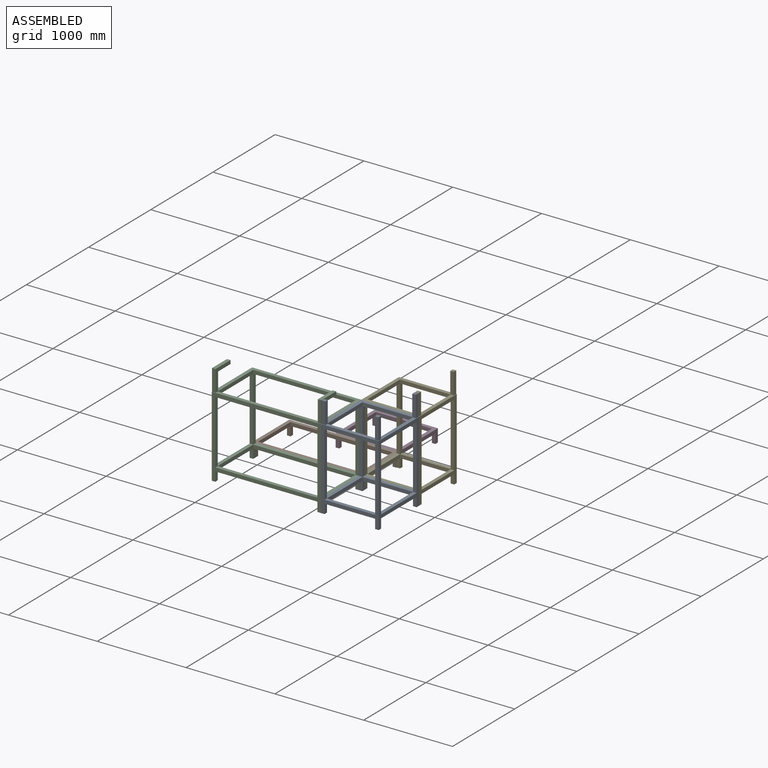
[diagram: assembled view]
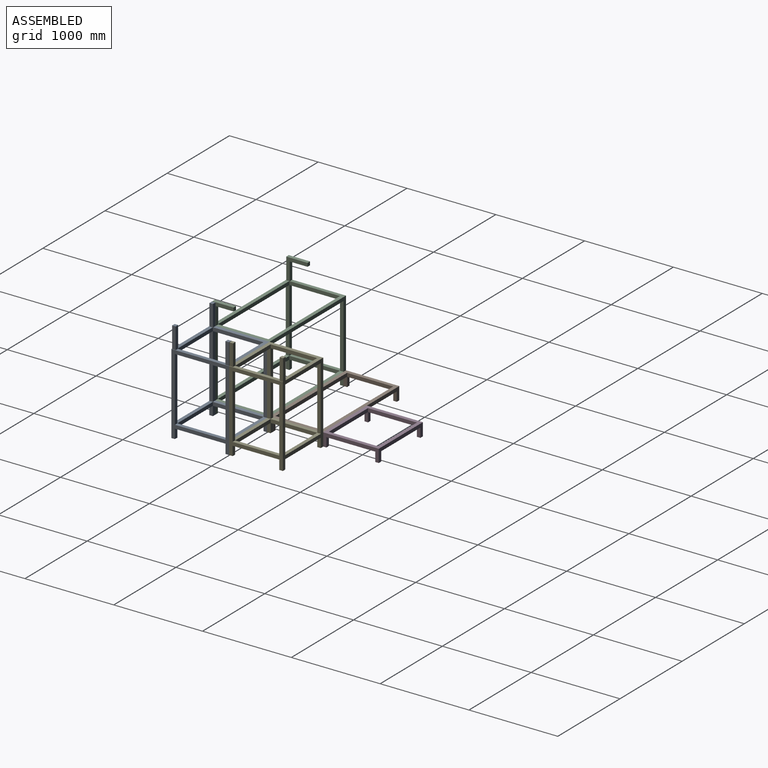
[diagram: assembled view, second angle]
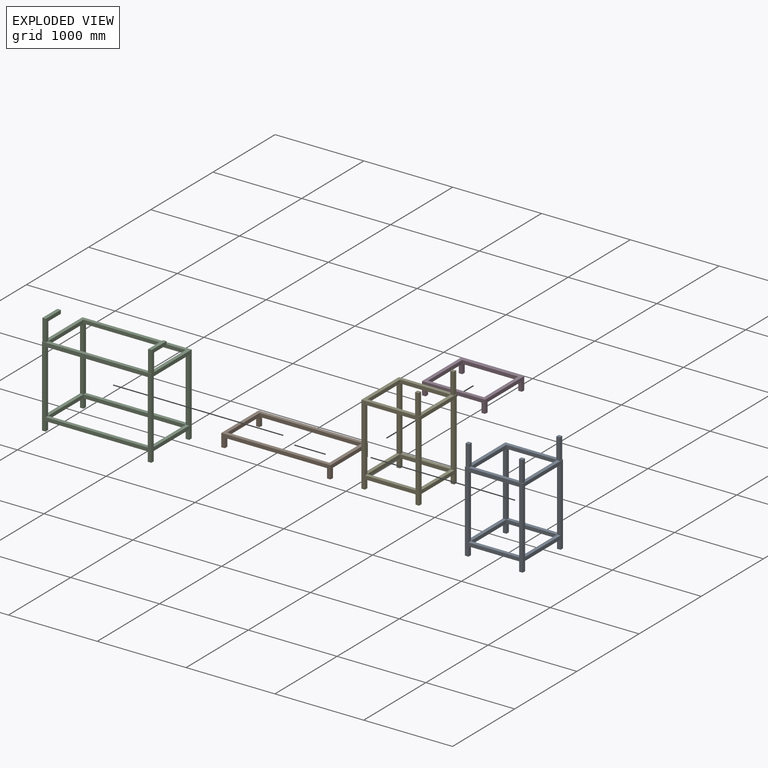
[diagram: exploded view]
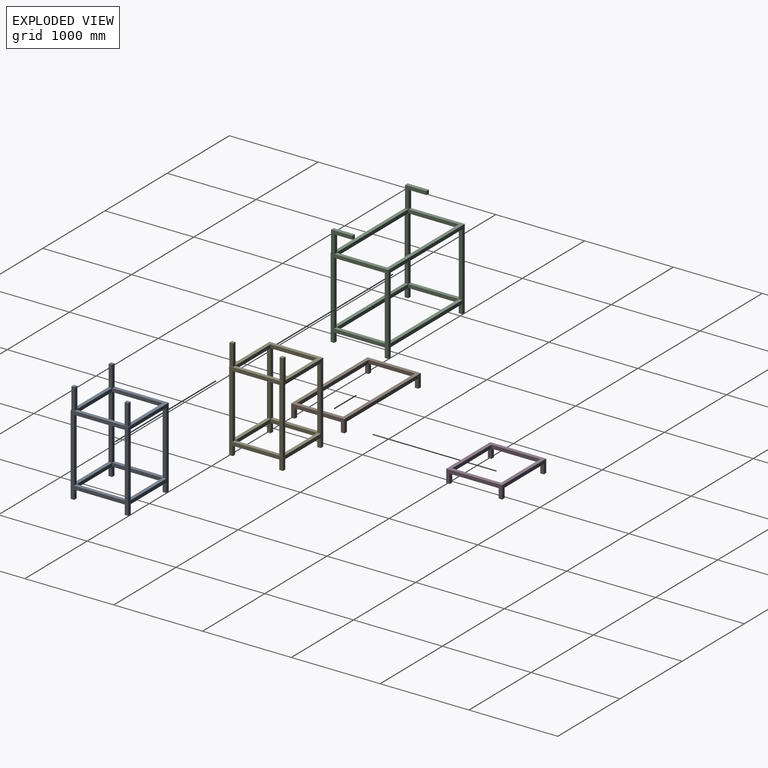
[diagram: exploded view, second angle]
ASSEMBLY  parts=5 mates=4
PART A: 63 faces, bbox 650x650x1145 mm
  f0: plane 650x650mm, normal (0,0,1), area 92875mm2, adj f1,f2,f4,f5,f13,f18,f19,f20
  f1: plane 905x650mm, normal (1,0,0), area 118000mm2, adj f0,f3,f8,f9,f13,f14,f23,f24
  f2: plane 570x40mm, normal (-1,0,0), area 22800mm2, adj f0,f3,f4,f5,f6,f7
  f3: plane 570x40mm, normal (0,0,-1), area 22800mm2, adj f1,f2,f8,f24
  f4: plane 570x40mm, normal (0,-1,0), area 22800mm2, adj f0,f2,f6,f35,f54
  f5: plane 570x40mm, normal (0,1,0), area 22800mm2, adj f0,f2,f7,f15,f17,f35
  f6: plane 5x5mm, normal (0,0,-1), area 25mm2, adj f2,f4,f31,f32
  f7: plane 5x5mm, normal (0,0,-1), area 25mm2, adj f2,f5,f55,f56
  f8: plane 720x40mm, normal (0,1,0), area 28800mm2, adj f1,f3,f10,f62
  f9: plane 105x40mm, normal (0,1,0), area 4200mm2, adj f1,f11,f14,f61
  f10: plane 720x40mm, normal (-1,0,0), area 28800mm2, adj f8,f13,f15,f51
  f11: plane 105x40mm, normal (-1,0,0), area 4200mm2, adj f9,f13,f14,f50
  f12: plane 570x40mm, normal (0,1,0), area 22800mm2, adj f42,f50,f51,f60
  f13: plane 905x650mm, normal (0,-1,0), area 118000mm2, adj f0,f1,f10,f11,f14,f15,f16,f36
  f14: plane 40x40mm, normal (0,0,-1), area 1600mm2, adj f1,f9,f11,f13
  f15: plane 570x40mm, normal (0,0,-1), area 22800mm2, adj f5,f10,f13,f16
  f16: plane 720x40mm, normal (1,0,0), area 28800mm2, adj f13,f15,f46,f51
  f17: plane 5x5mm, normal (0,0,-1), area 25mm2, adj f5,f19,f20,f35
  f18: plane 240x40mm, normal (0,-1,0), area 9600mm2, adj f0,f19,f21,f22
  f19: plane 240x40mm, normal (1,0,0), area 9600mm2, adj f0,f17,f18,f20,f22
  f20: plane 240x40mm, normal (0,1,0), area 9600mm2, adj f0,f17,f19,f21,f22
  f21: plane 240x40mm, normal (-1,0,0), area 9600mm2, adj f0,f18,f20,f22
  f22: plane 40x40mm, normal (0,0,1), area 1600mm2, adj f18,f19,f20,f21
  f23: plane 105x40mm, normal (0,-1,0), area 4200mm2, adj f1,f25,f29,f61
  f24: plane 720x40mm, normal (0,-1,0), area 28800mm2, adj f1,f3,f26,f62
  f25: plane 105x40mm, normal (-1,0,0), area 4200mm2, adj f23,f28,f29,f52
  f26: plane 720x40mm, normal (-1,0,0), area 28800mm2, adj f24,f28,f53,f54
  f27: plane 570x40mm, normal (0,-1,0), area 22800mm2, adj f42,f52,f53,f60
  f28: plane 905x650mm, normal (0,1,0), area 118000mm2, adj f0,f1,f25,f26,f29,f36,f38,f39
  f29: plane 40x40mm, normal (0,0,-1), area 1600mm2, adj f1,f23,f25,f28
  f30: plane 240x40mm, normal (0,1,0), area 9600mm2, adj f0,f31,f33,f34
  f31: plane 240x40mm, normal (-1,0,0), area 9600mm2, adj f0,f6,f30,f32,f34
  f32: plane 240x40mm, normal (0,-1,0), area 9600mm2, adj f0,f6,f31,f33,f34
  f33: plane 240x40mm, normal (1,0,0), area 9600mm2, adj f0,f30,f32,f34
  f34: plane 40x40mm, normal (0,0,1), area 1600mm2, adj f30,f31,f32,f33
  f35: plane 570x40mm, normal (1,0,0), area 22800mm2, adj f0,f4,f5,f17,f37
  f36: plane 905x650mm, normal (-1,0,0), area 118000mm2, adj f0,f13,f28,f37,f40,f41,f43,f45
  f37: plane 570x40mm, normal (0,0,-1), area 22800mm2, adj f35,f36,f41,f46
  f38: plane 720x40mm, normal (1,0,0), area 28800mm2, adj f28,f41,f53,f54
  f39: plane 105x40mm, normal (1,0,0), area 4200mm2, adj f28,f40,f43,f52
  f40: plane 105x40mm, normal (0,-1,0), area 4200mm2, adj f36,f39,f43,f48
  f41: plane 720x40mm, normal (0,-1,0), area 28800mm2, adj f36,f37,f38,f49
  f42: plane 570x40mm, normal (1,0,0), area 22800mm2, adj f12,f27,f48,f49
  f43: plane 40x40mm, normal (0,0,-1), area 1600mm2, adj f28,f36,f39,f40
  f44: plane 105x40mm, normal (1,0,0), area 4200mm2, adj f13,f45,f47,f50
  f45: plane 105x40mm, normal (0,1,0), area 4200mm2, adj f36,f44,f47,f48
  f46: plane 720x40mm, normal (0,1,0), area 28800mm2, adj f16,f36,f37,f49
  f47: plane 40x40mm, normal (0,0,-1), area 1600mm2, adj f13,f36,f44,f45
  f48: plane 570x40mm, normal (0,0,-1), area 22800mm2, adj f36,f40,f42,f45
  f49: plane 570x40mm, normal (0,0,1), area 22800mm2, adj f36,f41,f42,f46
  f50: plane 570x40mm, normal (0,0,-1), area 22800mm2, adj f11,f12,f13,f44
  f51: plane 570x40mm, normal (0,0,1), area 22800mm2, adj f10,f12,f13,f16
  f52: plane 570x40mm, normal (0,0,-1), area 22800mm2, adj f25,f27,f28,f39
  f53: plane 570x40mm, normal (0,0,1), area 22800mm2, adj f26,f27,f28,f38
  f54: plane 570x40mm, normal (0,0,-1), area 22800mm2, adj f4,f26,f28,f38
  f55: plane 240x40mm, normal (0,1,0), area 9600mm2, adj f0,f7,f56,f58,f59
  f56: plane 240x40mm, normal (-1,0,0), area 9600mm2, adj f0,f7,f55,f57,f59
  f57: plane 240x40mm, normal (0,-1,0), area 9600mm2, adj f0,f56,f58,f59
  f58: plane 240x40mm, normal (1,0,0), area 9600mm2, adj f0,f55,f57,f59
  f59: plane 40x40mm, normal (0,0,1), area 1600mm2, adj f55,f56,f57,f58
  f60: plane 570x40mm, normal (-1,0,0), area 22800mm2, adj f12,f27,f61,f62
  f61: plane 570x40mm, normal (0,0,-1), area 22800mm2, adj f1,f9,f23,f60
  f62: plane 570x40mm, normal (0,0,1), area 22800mm2, adj f1,f8,f24,f60
PART B: 25 faces, bbox 1230x600x145 mm
  f0: plane 1150x40mm, normal (0,1,0), area 46000mm2, adj f6,f10,f12,f21
  f1: plane 105x40mm, normal (1,0,0), area 4200mm2, adj f2,f4,f5,f12
  f2: plane 105x40mm, normal (0,1,0), area 4200mm2, adj f1,f3,f5,f22
  f3: plane 600x145mm, normal (-1,0,0), area 32400mm2, adj f2,f4,f5,f6,f8,f22,f23,f24
  f4: plane 1230x145mm, normal (0,-1,0), area 57600mm2, adj f1,f3,f5,f6,f12,f13,f14,f19
  f5: plane 40x40mm, normal (0,0,-1), area 1600mm2, adj f1,f2,f3,f4
  f6: plane 1230x600mm, normal (0,0,1), area 140000mm2, adj f0,f3,f4,f7,f8,f10,f14,f21
  f7: plane 1150x40mm, normal (0,-1,0), area 46000mm2, adj f6,f9,f10,f21
  f8: plane 1230x145mm, normal (0,1,0), area 57600mm2, adj f3,f6,f9,f11,f14,f16,f20,f24
  f9: plane 1150x40mm, normal (0,0,-1), area 46000mm2, adj f7,f8,f11,f20
  f10: plane 520x40mm, normal (-1,0,0), area 20800mm2, adj f0,f6,f7,f17
  f11: plane 105x40mm, normal (-1,0,0), area 4200mm2, adj f8,f9,f15,f16
  f12: plane 1150x40mm, normal (0,0,-1), area 46000mm2, adj f0,f1,f4,f13
  f13: plane 105x40mm, normal (-1,0,0), area 4200mm2, adj f4,f12,f18,f19
  f14: plane 600x145mm, normal (1,0,0), area 32400mm2, adj f4,f6,f8,f15,f16,f17,f18,f19
  f15: plane 105x40mm, normal (0,-1,0), area 4200mm2, adj f11,f14,f16,f17
  f16: plane 40x40mm, normal (0,0,-1), area 1600mm2, adj f8,f11,f14,f15
  f17: plane 520x40mm, normal (0,0,-1), area 20800mm2, adj f10,f14,f15,f18
  f18: plane 105x40mm, normal (0,1,0), area 4200mm2, adj f13,f14,f17,f19
  f19: plane 40x40mm, normal (0,0,-1), area 1600mm2, adj f4,f13,f14,f18
  f20: plane 105x40mm, normal (1,0,0), area 4200mm2, adj f8,f9,f23,f24
  f21: plane 520x40mm, normal (1,0,0), area 20800mm2, adj f0,f6,f7,f22
  f22: plane 520x40mm, normal (0,0,-1), area 20800mm2, adj f2,f3,f21,f23
  f23: plane 105x40mm, normal (0,-1,0), area 4200mm2, adj f3,f20,f22,f24
  f24: plane 40x40mm, normal (0,0,-1), area 1600mm2, adj f3,f8,f20,f23
PART C: 56 faces, bbox 1230x650x1145 mm
  f0: plane 1230x905mm, normal (0,1,0), area 164400mm2, adj f2,f3,f4,f7,f9,f10,f12,f13
  f1: plane 1150x40mm, normal (0,-1,0), area 46000mm2, adj f2,f3,f5,f6
  f2: plane 1150x40mm, normal (0,0,-1), area 46000mm2, adj f0,f1,f4,f7
  f3: plane 1230x605mm, normal (0,0,1), area 94400mm2, adj f0,f1,f5,f6,f15,f26,f27,f41
  f4: plane 720x40mm, normal (1,0,0), area 28800mm2, adj f0,f2,f10,f50
  f5: plane 605x280mm, normal (1,0,0), area 40400mm2, adj f1,f3,f17,f26,f28,f29,f30,f31
  f6: plane 605x280mm, normal (-1,0,0), area 40400mm2, adj f1,f3,f16,f17,f32,f41,f42,f43
  f7: plane 720x40mm, normal (-1,0,0), area 28800mm2, adj f0,f2,f10,f53
  f8: plane 1150x40mm, normal (0,-1,0), area 46000mm2, adj f9,f10,f11,f14
  f9: plane 1150x40mm, normal (0,0,-1), area 46000mm2, adj f0,f8,f12,f13
  f10: plane 1150x40mm, normal (0,0,1), area 46000mm2, adj f0,f4,f7,f8
  f11: plane 570x40mm, normal (-1,0,0), area 22800mm2, adj f8,f18,f36,f37
  f12: plane 105x40mm, normal (-1,0,0), area 4200mm2, adj f0,f9,f54,f55
  f13: plane 105x40mm, normal (1,0,0), area 4200mm2, adj f0,f9,f51,f52
  f14: plane 570x40mm, normal (1,0,0), area 22800mm2, adj f8,f18,f38,f39
  f15: plane 1145x650mm, normal (1,0,0), area 135600mm2, adj f0,f3,f16,f19,f32,f35,f36,f37
  f16: plane 570x40mm, normal (0,0,-1), area 22800mm2, adj f6,f15,f35,f53
  f17: plane 1150x40mm, normal (0,1,0), area 46000mm2, adj f5,f6,f32,f49
  f18: plane 1150x40mm, normal (0,1,0), area 46000mm2, adj f11,f14,f20,f21
  f19: plane 1230x905mm, normal (0,-1,0), area 164400mm2, adj f15,f20,f21,f22,f23,f24,f25,f27
  f20: plane 1150x40mm, normal (0,0,-1), area 46000mm2, adj f18,f19,f22,f25
  f21: plane 1150x40mm, normal (0,0,1), area 46000mm2, adj f18,f19,f23,f24
  f22: plane 105x40mm, normal (-1,0,0), area 4200mm2, adj f19,f20,f46,f47
  f23: plane 720x40mm, normal (-1,0,0), area 28800mm2, adj f19,f21,f35,f49
  f24: plane 720x40mm, normal (1,0,0), area 28800mm2, adj f19,f21,f34,f49
  f25: plane 105x40mm, normal (1,0,0), area 4200mm2, adj f19,f20,f40,f48
  f26: plane 200x40mm, normal (0,1,0), area 8000mm2, adj f3,f5,f27,f30
  f27: plane 1145x650mm, normal (-1,0,0), area 135600mm2, adj f0,f3,f19,f26,f28,f29,f30,f31
  f28: plane 240x40mm, normal (0,-1,0), area 9600mm2, adj f5,f27,f29,f32
  f29: plane 240x40mm, normal (0,0,1), area 9600mm2, adj f5,f27,f28,f31
  f30: plane 200x40mm, normal (0,0,-1), area 8000mm2, adj f5,f26,f27,f31
  f31: plane 40x40mm, normal (0,1,0), area 1600mm2, adj f5,f27,f29,f30
  f32: plane 1230x40mm, normal (0,0,1), area 46400mm2, adj f5,f6,f15,f17,f19,f27,f28,f42
  f33: plane 570x40mm, normal (0,0,-1), area 22800mm2, adj f5,f27,f34,f50
  f34: plane 720x40mm, normal (0,1,0), area 28800mm2, adj f24,f27,f33,f39
  f35: plane 720x40mm, normal (0,1,0), area 28800mm2, adj f15,f16,f23,f37
  f36: plane 570x40mm, normal (0,0,-1), area 22800mm2, adj f11,f15,f46,f54
  f37: plane 570x40mm, normal (0,0,1), area 22800mm2, adj f11,f15,f35,f53
  f38: plane 570x40mm, normal (0,0,-1), area 22800mm2, adj f14,f27,f40,f51
  f39: plane 570x40mm, normal (0,0,1), area 22800mm2, adj f14,f27,f34,f50
  f40: plane 105x40mm, normal (0,1,0), area 4200mm2, adj f25,f27,f38,f48
  f41: plane 200x40mm, normal (0,1,0), area 8000mm2, adj f3,f6,f15,f44
  f42: plane 240x40mm, normal (0,-1,0), area 9600mm2, adj f6,f15,f32,f43
  f43: plane 240x40mm, normal (0,0,1), area 9600mm2, adj f6,f15,f42,f45
  f44: plane 200x40mm, normal (0,0,-1), area 8000mm2, adj f6,f15,f41,f45
  f45: plane 40x40mm, normal (0,1,0), area 1600mm2, adj f6,f15,f43,f44
  f46: plane 105x40mm, normal (0,1,0), area 4200mm2, adj f15,f22,f36,f47
  f47: plane 40x40mm, normal (0,0,-1), area 1600mm2, adj f15,f19,f22,f46
  f48: plane 40x40mm, normal (0,0,-1), area 1600mm2, adj f19,f25,f27,f40
  f49: plane 1150x40mm, normal (0,0,-1), area 46000mm2, adj f17,f19,f23,f24
  f50: plane 720x40mm, normal (0,-1,0), area 28800mm2, adj f4,f27,f33,f39
  f51: plane 105x40mm, normal (0,-1,0), area 4200mm2, adj f13,f27,f38,f52
  f52: plane 40x40mm, normal (0,0,-1), area 1600mm2, adj f0,f13,f27,f51
  f53: plane 720x40mm, normal (0,-1,0), area 28800mm2, adj f7,f15,f16,f37
  f54: plane 105x40mm, normal (0,-1,0), area 4200mm2, adj f12,f15,f36,f55
  f55: plane 40x40mm, normal (0,0,-1), area 1600mm2, adj f0,f12,f15,f54
PART D: 25 faces, bbox 710x630x145 mm
  f0: plane 630x40mm, normal (0,1,0), area 25200mm2, adj f6,f10,f12,f21
  f1: plane 105x40mm, normal (1,0,0), area 4200mm2, adj f2,f4,f5,f12
  f2: plane 105x40mm, normal (0,1,0), area 4200mm2, adj f1,f3,f5,f22
  f3: plane 630x145mm, normal (-1,0,0), area 33600mm2, adj f2,f4,f5,f6,f8,f22,f23,f24
  f4: plane 710x145mm, normal (0,-1,0), area 36800mm2, adj f1,f3,f5,f6,f12,f13,f14,f19
  f5: plane 40x40mm, normal (0,0,-1), area 1600mm2, adj f1,f2,f3,f4
  f6: plane 710x630mm, normal (0,0,1), area 100800mm2, adj f0,f3,f4,f7,f8,f10,f14,f21
  f7: plane 630x40mm, normal (0,-1,0), area 25200mm2, adj f6,f9,f10,f21
  f8: plane 710x145mm, normal (0,1,0), area 36800mm2, adj f3,f6,f9,f11,f14,f16,f20,f24
  f9: plane 630x40mm, normal (0,0,-1), area 25200mm2, adj f7,f8,f11,f20
  f10: plane 550x40mm, normal (-1,0,0), area 22000mm2, adj f0,f6,f7,f17
  f11: plane 105x40mm, normal (-1,0,0), area 4200mm2, adj f8,f9,f15,f16
  f12: plane 630x40mm, normal (0,0,-1), area 25200mm2, adj f0,f1,f4,f13
  f13: plane 105x40mm, normal (-1,0,0), area 4200mm2, adj f4,f12,f18,f19
  f14: plane 630x145mm, normal (1,0,0), area 33600mm2, adj f4,f6,f8,f15,f16,f17,f18,f19
  f15: plane 105x40mm, normal (0,-1,0), area 4200mm2, adj f11,f14,f16,f17
  f16: plane 40x40mm, normal (0,0,-1), area 1600mm2, adj f8,f11,f14,f15
  f17: plane 550x40mm, normal (0,0,-1), area 22000mm2, adj f10,f14,f15,f18
  f18: plane 105x40mm, normal (0,1,0), area 4200mm2, adj f13,f14,f17,f19
  f19: plane 40x40mm, normal (0,0,-1), area 1600mm2, adj f4,f13,f14,f18
  f20: plane 105x40mm, normal (1,0,0), area 4200mm2, adj f8,f9,f23,f24
  f21: plane 550x40mm, normal (1,0,0), area 22000mm2, adj f0,f6,f7,f22
  f22: plane 550x40mm, normal (0,0,-1), area 22000mm2, adj f2,f3,f21,f23
  f23: plane 105x40mm, normal (0,-1,0), area 4200mm2, adj f3,f20,f22,f24
  f24: plane 40x40mm, normal (0,0,-1), area 1600mm2, adj f3,f8,f20,f23
PART E: 52 faces, bbox 650x605x1145 mm
  f0: plane 240x40mm, normal (1,0,0), area 9600mm2, adj f1,f3,f4,f17
  f1: plane 1145x650mm, normal (0,1,0), area 127600mm2, adj f0,f2,f4,f5,f6,f15,f16,f17
  f2: plane 240x40mm, normal (-1,0,0), area 9600mm2, adj f1,f3,f4,f5
  f3: plane 605x280mm, normal (0,-1,0), area 32400mm2, adj f0,f2,f4,f5,f17,f29,f30,f50
  f4: plane 40x40mm, normal (0,0,1), area 1600mm2, adj f0,f1,f2,f3
  f5: plane 605x605mm, normal (0,0,1), area 69400mm2, adj f1,f2,f3,f23,f26,f30,f32,f36
  f6: plane 905x605mm, normal (1,0,0), area 114400mm2, adj f1,f8,f9,f10,f12,f13,f17,f18
  f7: plane 525x40mm, normal (-1,0,0), area 21000mm2, adj f8,f9,f11,f14
  f8: plane 525x40mm, normal (0,0,-1), area 21000mm2, adj f6,f7,f13,f27
  f9: plane 525x40mm, normal (0,0,1), area 21000mm2, adj f6,f7,f10,f12
  f10: plane 720x40mm, normal (0,1,0), area 28800mm2, adj f6,f9,f24,f51
  f11: plane 570x40mm, normal (0,1,0), area 22800mm2, adj f7,f37,f44,f45
  f12: plane 720x40mm, normal (0,-1,0), area 28800mm2, adj f6,f9,f16,f51
  f13: plane 105x40mm, normal (0,-1,0), area 4200mm2, adj f6,f8,f15,f18
  f14: plane 570x40mm, normal (0,-1,0), area 22800mm2, adj f7,f19,f20,f37
  f15: plane 105x40mm, normal (-1,0,0), area 4200mm2, adj f1,f13,f18,f19
  f16: plane 720x40mm, normal (-1,0,0), area 28800mm2, adj f1,f12,f20,f29
  f17: plane 605x40mm, normal (0,0,1), area 21400mm2, adj f0,f1,f3,f6,f23,f26,f31,f50
  f18: plane 40x40mm, normal (0,0,-1), area 1600mm2, adj f1,f6,f13,f15
  f19: plane 570x40mm, normal (0,0,-1), area 22800mm2, adj f1,f14,f15,f22
  f20: plane 570x40mm, normal (0,0,1), area 22800mm2, adj f1,f14,f16,f21
  f21: plane 720x40mm, normal (1,0,0), area 28800mm2, adj f1,f20,f29,f42
  f22: plane 105x40mm, normal (1,0,0), area 4200mm2, adj f1,f19,f48,f49
  f23: plane 605x280mm, normal (0,1,0), area 32400mm2, adj f5,f17,f30,f31,f32,f33,f34,f50
  f24: plane 720x40mm, normal (-1,0,0), area 28800mm2, adj f10,f26,f34,f45
  f25: plane 105x40mm, normal (-1,0,0), area 4200mm2, adj f26,f27,f28,f44
  f26: plane 1145x650mm, normal (0,-1,0), area 127600mm2, adj f5,f6,f17,f24,f25,f28,f31,f32
  f27: plane 105x40mm, normal (0,1,0), area 4200mm2, adj f6,f8,f25,f28
  f28: plane 40x40mm, normal (0,0,-1), area 1600mm2, adj f6,f25,f26,f27
  f29: plane 570x40mm, normal (0,0,-1), area 22800mm2, adj f1,f3,f16,f21
  f30: plane 525x40mm, normal (1,0,0), area 21000mm2, adj f3,f5,f23,f43
  f31: plane 240x40mm, normal (1,0,0), area 9600mm2, adj f17,f23,f26,f33
  f32: plane 240x40mm, normal (-1,0,0), area 9600mm2, adj f5,f23,f26,f33
  f33: plane 40x40mm, normal (0,0,1), area 1600mm2, adj f23,f26,f31,f32
  f34: plane 570x40mm, normal (0,0,-1), area 22800mm2, adj f23,f24,f26,f35
  f35: plane 720x40mm, normal (1,0,0), area 28800mm2, adj f26,f34,f40,f45
  f36: plane 905x605mm, normal (-1,0,0), area 114400mm2, adj f1,f5,f26,f38,f39,f40,f41,f42
  f37: plane 525x40mm, normal (1,0,0), area 21000mm2, adj f11,f14,f38,f39
  f38: plane 525x40mm, normal (0,0,-1), area 21000mm2, adj f36,f37,f41,f48
  f39: plane 525x40mm, normal (0,0,1), area 21000mm2, adj f36,f37,f40,f42
  f40: plane 720x40mm, normal (0,1,0), area 28800mm2, adj f35,f36,f39,f43
  f41: plane 105x40mm, normal (0,1,0), area 4200mm2, adj f36,f38,f46,f47
  f42: plane 720x40mm, normal (0,-1,0), area 28800mm2, adj f21,f36,f39,f43
  f43: plane 525x40mm, normal (0,0,-1), area 21000mm2, adj f30,f36,f40,f42
  f44: plane 570x40mm, normal (0,0,-1), area 22800mm2, adj f11,f25,f26,f46
  f45: plane 570x40mm, normal (0,0,1), area 22800mm2, adj f11,f24,f26,f35
  f46: plane 105x40mm, normal (1,0,0), area 4200mm2, adj f26,f41,f44,f47
  f47: plane 40x40mm, normal (0,0,-1), area 1600mm2, adj f26,f36,f41,f46
  f48: plane 105x40mm, normal (0,-1,0), area 4200mm2, adj f22,f36,f38,f49
  f49: plane 40x40mm, normal (0,0,-1), area 1600mm2, adj f1,f22,f36,f48
  f50: plane 525x40mm, normal (-1,0,0), area 21000mm2, adj f3,f17,f23,f51
  f51: plane 525x40mm, normal (0,0,-1), area 21000mm2, adj f6,f10,f12,f50
PLACE A t=(-536.95,725.25,-250.15)mm fixed
PLACE B t=(-1476.95,1350.25,-250.15)mm
PLACE C t=(-1476.95,725.25,-250.15)mm
PLACE D t=(-1216.95,1965.25,-250.15)mm
PLACE E t=(-536.95,1352.75,-250.15)mm
MATE fastened E.f26 <-> A.f28  axis (0,-1,0) through (-211.95,1050.25,-395.15)mm
MATE fastened D.f4 <-> B.f8  axis (0,-1,0) through (-861.95,1650.25,-395.15)mm
MATE fastened C.f15 <-> A.f36  axis (1,0,0) through (-861.95,400.25,-395.15)mm
MATE fastened B.f14 <-> E.f36  axis (1,0,0) through (-861.95,1050.25,-395.15)mm
